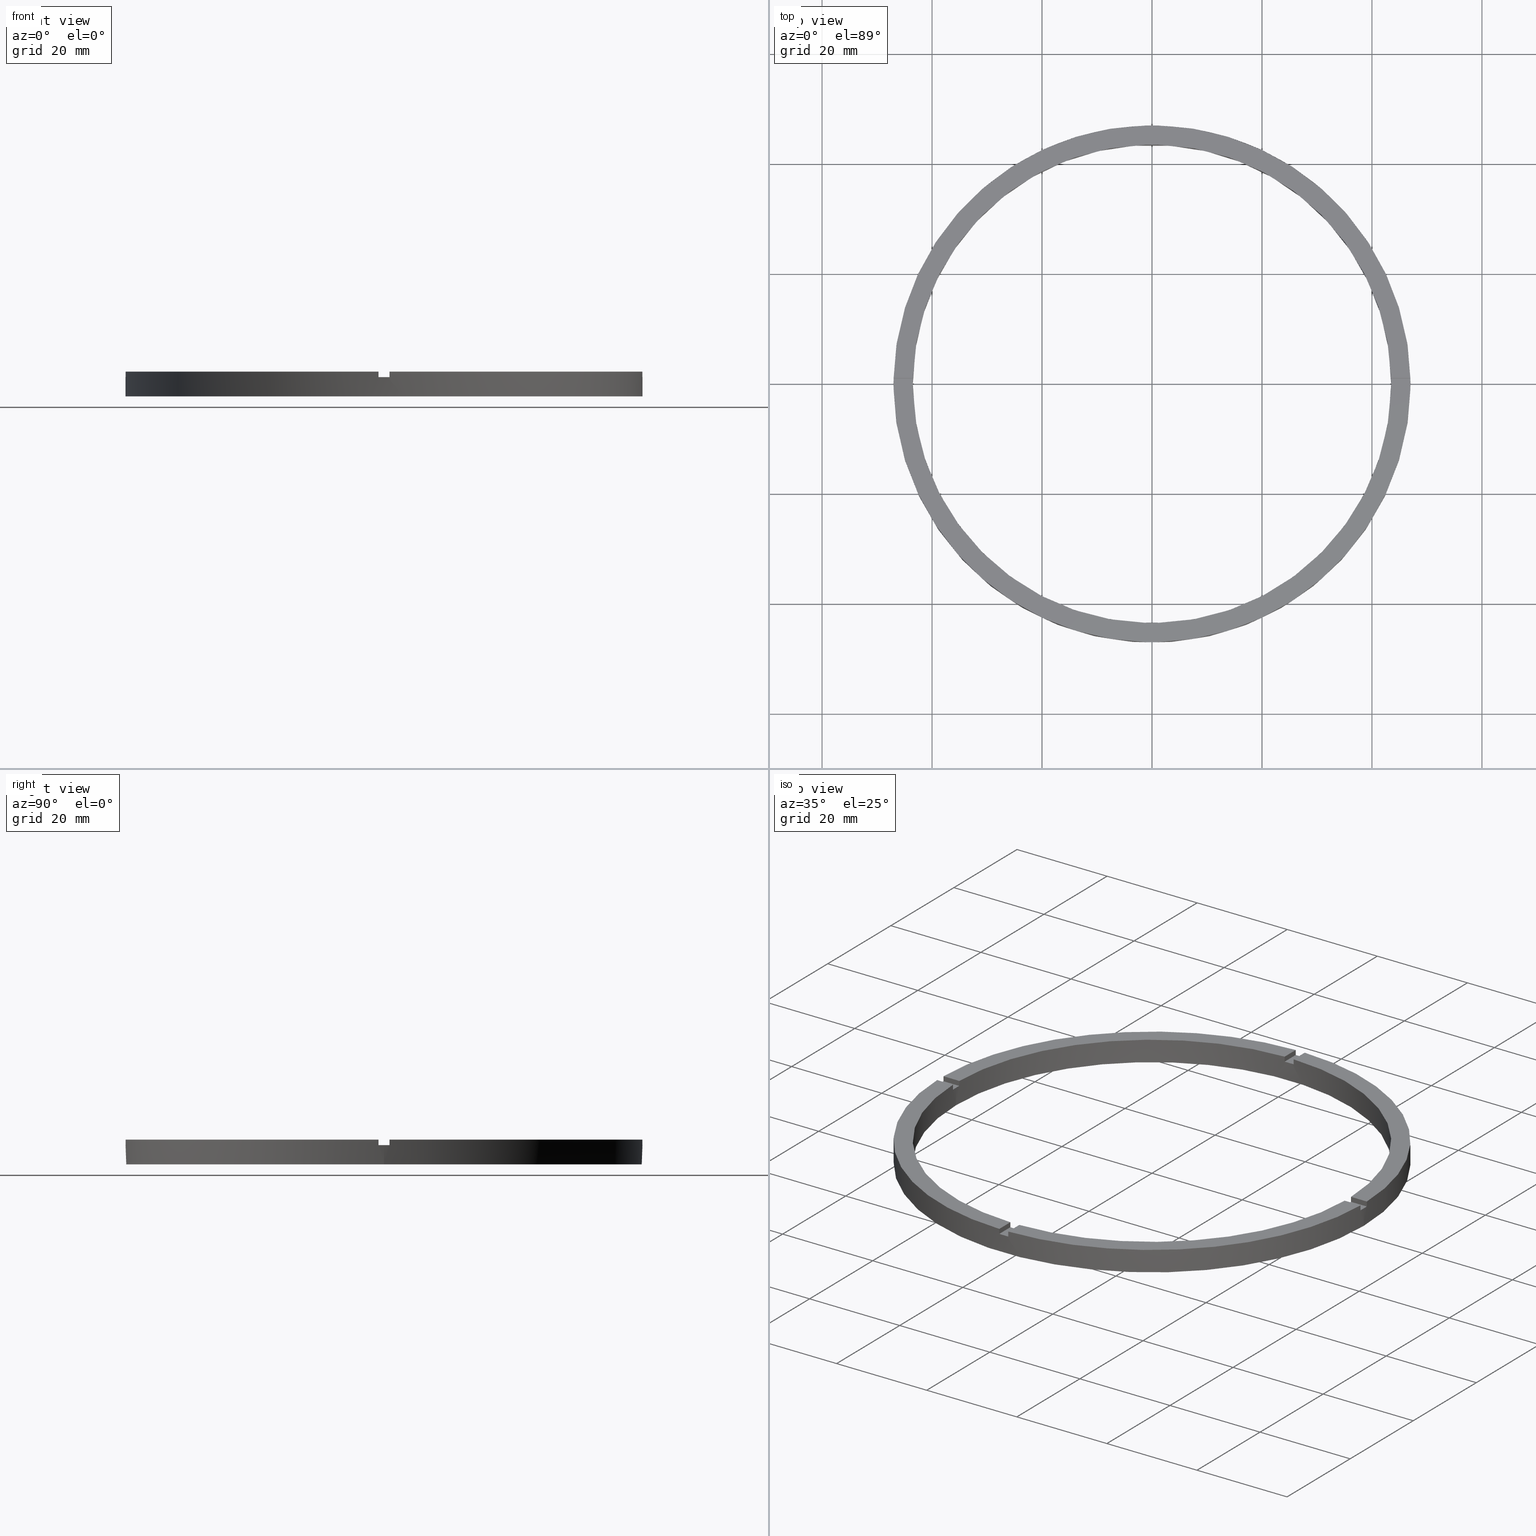
[diagram: canonical four-view strip — front | top / right | iso, engineering-drawing reading convention]
A machine part, canonical four-view strip (front | top / right | iso — engineering-drawing reading convention). The complete STEP part file that produces these views, byte-faithful:
ISO-10303-21;
HEADER;
FILE_DESCRIPTION (( 'STEP AP203' ),
    '1' );
FILE_NAME ('514193.step',
    '2024-12-26T02:46:39',
    ( 'MSI' ),
    ( '' ),
    'SwSTEP 2.0',
    'SolidWorks 2020',
    '' );
FILE_SCHEMA (( 'CONFIG_CONTROL_DESIGN' ));
ENDSEC;

DATA;
#1 = VERTEX_POINT ( 'NONE', #778 ) ;
#2 = EDGE_CURVE ( 'NONE', #428, #25, #442, .T. ) ;
#3 = DIRECTION ( 'NONE',  ( 0.000000000000000000, 0.000000000000000000, 1.000000000000000000 ) ) ;
#4 = LINE ( 'NONE', #335, #760 ) ;
#5 = ORIENTED_EDGE ( 'NONE', *, *, #675, .T. ) ;
#6 = VECTOR ( 'NONE', #573, 1000.000000000000000 ) ;
#7 = FACE_OUTER_BOUND ( 'NONE', #170, .T. ) ;
#8 = PRODUCT_DEFINITION ( 'δ֪', '', #55, #718 ) ;
#9 = CARTESIAN_POINT ( 'NONE',  ( -1.000000000000026423, 37.00000000000000711, 3.499999999999999556 ) ) ;
#10 = EDGE_LOOP ( 'NONE', ( #211, #484, #194, #402, #761, #656, #735, #734, #152, #149, #739, #217 ) ) ;
#11 = DIRECTION ( 'NONE',  ( -0.000000000000000000, 0.000000000000000000, 1.000000000000000000 ) ) ;
#12 = ADVANCED_BREP_SHAPE_REPRESENTATION ( '514193', ( #301, #42 ), #80 ) ;
#13 = VERTEX_POINT ( 'NONE', #171 ) ;
#14 = VERTEX_POINT ( 'NONE', #276 ) ;
#15 = CARTESIAN_POINT ( 'NONE',  ( 0.000000000000000000, 0.000000000000000000, 3.499999999999999556 ) ) ;
#16 = DIRECTION ( 'NONE',  ( -1.000000000000000000, -6.505213034913025371E-17, -0.000000000000000000 ) ) ;
#17 = COORDINATED_UNIVERSAL_TIME_OFFSET ( 8, 0, .AHEAD. ) ;
#18 = EDGE_LOOP ( 'NONE', ( #715, #722, #422, #283 ) ) ;
#19 = PRODUCT_RELATED_PRODUCT_CATEGORY ( 'detail', '', ( #72 ) ) ;
#20 = COORDINATED_UNIVERSAL_TIME_OFFSET ( 8, 0, .AHEAD. ) ;
#21 = SHAPE_DEFINITION_REPRESENTATION ( #781, #12 ) ;
#22 = ORIENTED_EDGE ( 'NONE', *, *, #586, .T. ) ;
#23 = AXIS2_PLACEMENT_3D ( 'NONE', #111, #26, #126 ) ;
#24 = CARTESIAN_POINT ( 'NONE',  ( 0.9999999999998412381, -37.00000000000018474, 4.500000000000000000 ) ) ;
#25 = VERTEX_POINT ( 'NONE', #613 ) ;
#26 = DIRECTION ( 'NONE',  ( 0.000000000000000000, 0.000000000000000000, 1.000000000000000000 ) ) ;
#27 = VERTEX_POINT ( 'NONE', #197 ) ;
#28 = ORIENTED_EDGE ( 'NONE', *, *, #773, .T. ) ;
#29 = DATE_AND_TIME ( #553, #48 ) ;
#30 = ORIENTED_EDGE ( 'NONE', *, *, #322, .T. ) ;
#31 = EDGE_CURVE ( 'NONE', #158, #542, #461, .T. ) ;
#32 = ORIENTED_EDGE ( 'NONE', *, *, #648, .F. ) ;
#33 =( LENGTH_UNIT ( ) NAMED_UNIT ( * ) SI_UNIT ( .MILLI., .METRE. ) );
#34 = PLANE ( 'NONE',  #426 ) ;
#35 = SECURITY_CLASSIFICATION_LEVEL ( 'unclassified' ) ;
#36 = APPROVAL_DATE_TIME ( #29, #218 ) ;
#37 = ADVANCED_FACE ( 'NONE', ( #725 ), #125, .F. ) ;
#38 = APPROVAL_PERSON_ORGANIZATION ( #559, #660, #274 ) ;
#39 = CARTESIAN_POINT ( 'NONE',  ( 43.48850422812906658, 0.9999999999998441247, 4.500000000000000000 ) ) ;
#40 = DATE_AND_TIME ( #52, #550 ) ;
#41 = EDGE_CURVE ( 'NONE', #13, #161, #454, .T. ) ;
#42 = AXIS2_PLACEMENT_3D ( 'NONE', #323, #561, #567 ) ;
#43 = APPLICATION_PROTOCOL_DEFINITION ( 'international standard', 'config_control_design', 1994, #83 ) ;
#44 = DIRECTION ( 'NONE',  ( 1.000000000000000000, 0.000000000000000000, 0.000000000000000000 ) ) ;
#45 = CARTESIAN_POINT ( 'NONE',  ( -47.00000000000000711, 0.000000000000000000, 0.000000000000000000 ) ) ;
#46 = CARTESIAN_POINT ( 'NONE',  ( 46.98936049788292024, -1.000000000000155653, 4.500000000000000000 ) ) ;
#47 = CARTESIAN_POINT ( 'NONE',  ( 0.000000000000000000, 0.000000000000000000, 4.500000000000000000 ) ) ;
#48 = LOCAL_TIME ( 10, 46, 39.00000000000000000, #17 ) ;
#49 = EDGE_CURVE ( 'NONE', #707, #710, #698, .T. ) ;
#50 = PERSON_AND_ORGANIZATION ( #622, #554 ) ;
#51 = CARTESIAN_POINT ( 'NONE',  ( 0.9999999999999735767, 43.48850422812906658, 4.500000000000000000 ) ) ;
#52 = CALENDAR_DATE ( 2024, 26, 12 ) ;
#53 = DIRECTION ( 'NONE',  ( -1.000000000000000000, 0.000000000000000000, 0.000000000000000000 ) ) ;
#54 = DIRECTION ( 'NONE',  ( -0.000000000000000000, -0.000000000000000000, -1.000000000000000000 ) ) ;
#55 = PRODUCT_DEFINITION_FORMATION_WITH_SPECIFIED_SOURCE ( '�κ�', '', #72, .NOT_KNOWN. ) ;
#56 = CARTESIAN_POINT ( 'NONE',  ( 0.000000000000000000, 0.000000000000000000, 4.500000000000000000 ) ) ;
#57 = DIRECTION ( 'NONE',  ( 1.000000000000000000, 0.000000000000000000, 0.000000000000000000 ) ) ;
#58 = AXIS2_PLACEMENT_3D ( 'NONE', #84, #684, #750 ) ;
#59 = CARTESIAN_POINT ( 'NONE',  ( 0.000000000000000000, 0.000000000000000000, 0.000000000000000000 ) ) ;
#60 = DIRECTION ( 'NONE',  ( 0.000000000000000000, 0.000000000000000000, 1.000000000000000000 ) ) ;
#61 = DIRECTION ( 'NONE',  ( -0.000000000000000000, -0.000000000000000000, -1.000000000000000000 ) ) ;
#62 = CARTESIAN_POINT ( 'NONE',  ( -46.98936049788292024, -1.000000000000030642, 3.499999999999999556 ) ) ;
#63 = AXIS2_PLACEMENT_3D ( 'NONE', #206, #751, #538 ) ;
#64 = DATE_AND_TIME ( #320, #572 ) ;
#65 = ADVANCED_FACE ( 'NONE', ( #723 ), #131, .F. ) ;
#66 = COORDINATED_UNIVERSAL_TIME_OFFSET ( 8, 0, .AHEAD. ) ;
#67 = AXIS2_PLACEMENT_3D ( 'NONE', #600, #245, #657 ) ;
#68 = CARTESIAN_POINT ( 'NONE',  ( 43.48850422812905947, -1.000000000000155875, 4.500000000000000000 ) ) ;
#69 = PERSON_AND_ORGANIZATION ( #622, #554 ) ;
#70 = PERSON_AND_ORGANIZATION ( #622, #554 ) ;
#71 = EDGE_CURVE ( 'NONE', #420, #518, #183, .T. ) ;
#72 = PRODUCT ( '514193', '514193', '', ( #326 ) ) ;
#73 = ADVANCED_FACE ( 'NONE', ( #448 ), #79, .T. ) ;
#74 = CARTESIAN_POINT ( 'NONE',  ( 0.9999999999998425704, -46.98936049788292735, 4.500000000000000000 ) ) ;
#75 = CARTESIAN_POINT ( 'NONE',  ( 0.9999999999999735767, 37.00000000000000711, 3.499999999999999556 ) ) ;
#76 = EDGE_CURVE ( 'NONE', #439, #162, #713, .T. ) ;
#77 = CARTESIAN_POINT ( 'NONE',  ( 0.000000000000000000, 0.000000000000000000, 0.000000000000000000 ) ) ;
#78 = EDGE_CURVE ( 'NONE', #537, #463, #204, .T. ) ;
#79 = PLANE ( 'NONE',  #643 ) ;
#80 =( GEOMETRIC_REPRESENTATION_CONTEXT ( 3 ) GLOBAL_UNCERTAINTY_ASSIGNED_CONTEXT ( ( #405 ) ) GLOBAL_UNIT_ASSIGNED_CONTEXT ( ( #33, #669, #740 ) ) REPRESENTATION_CONTEXT ( 'NONE', 'WORKASPACE' ) );
#81 = CC_DESIGN_DATE_AND_TIME_ASSIGNMENT ( #540, #196, ( #704 ) ) ;
#82 = AXIS2_PLACEMENT_3D ( 'NONE', #483, #132, #118 ) ;
#83 = APPLICATION_CONTEXT ( 'configuration controlled 3d designs of mechanical parts and assemblies' ) ;
#84 = CARTESIAN_POINT ( 'NONE',  ( 0.9999999999998412381, -37.00000000000018474, 3.499999999999999556 ) ) ;
#85 = DIRECTION ( 'NONE',  ( 1.000000000000000000, 0.000000000000000000, -0.000000000000000000 ) ) ;
#86 = EDGE_CURVE ( 'NONE', #463, #25, #703, .T. ) ;
#87 = APPLICATION_CONTEXT ( 'configuration controlled 3d designs of mechanical parts and assemblies' ) ;
#88 = EDGE_CURVE ( 'NONE', #428, #260, #205, .T. ) ;
#89 = CARTESIAN_POINT ( 'NONE',  ( -47.00000000000000711, 0.000000000000000000, 3.499999999999999556 ) ) ;
#90 = CARTESIAN_POINT ( 'NONE',  ( 0.000000000000000000, 0.000000000000000000, 3.499999999999999556 ) ) ;
#91 = LINE ( 'NONE', #666, #363 ) ;
#92 = EDGE_CURVE ( 'NONE', #25, #180, #728, .T. ) ;
#93 = LINE ( 'NONE', #324, #602 ) ;
#94 = VECTOR ( 'NONE', #640, 1000.000000000000000 ) ;
#95 = CARTESIAN_POINT ( 'NONE',  ( -1.000000000000158762, -37.00000000000018474, 4.500000000000000000 ) ) ;
#96 = EDGE_CURVE ( 'NONE', #668, #724, #186, .T. ) ;
#97 = DIRECTION ( 'NONE',  ( 1.000000000000000000, 0.000000000000000000, 0.000000000000000000 ) ) ;
#98 = EDGE_CURVE ( 'NONE', #198, #162, #451, .T. ) ;
#99 = AXIS2_PLACEMENT_3D ( 'NONE', #628, #471, #576 ) ;
#100 = DIRECTION ( 'NONE',  ( -1.000000000000000000, 0.000000000000000000, 0.000000000000000000 ) ) ;
#101 = CARTESIAN_POINT ( 'NONE',  ( -43.48850422812906658, -1.000000000000029976, 3.499999999999999556 ) ) ;
#102 = DIRECTION ( 'NONE',  ( -0.000000000000000000, -0.000000000000000000, -1.000000000000000000 ) ) ;
#103 = CIRCLE ( 'NONE', #113, 47.00000000000000711 ) ;
#104 = DIRECTION ( 'NONE',  ( 0.000000000000000000, 0.000000000000000000, 1.000000000000000000 ) ) ;
#105 = CIRCLE ( 'NONE', #349, 47.00000000000000711 ) ;
#106 = AXIS2_PLACEMENT_3D ( 'NONE', #228, #279, #395 ) ;
#107 = PLANE ( 'NONE',  #667 ) ;
#108 = AXIS2_PLACEMENT_3D ( 'NONE', #531, #391, #57 ) ;
#109 = FACE_OUTER_BOUND ( 'NONE', #192, .T. ) ;
#110 = DIRECTION ( 'NONE',  ( 1.000000000000000000, -0.000000000000000000, 0.000000000000000000 ) ) ;
#111 = CARTESIAN_POINT ( 'NONE',  ( 0.000000000000000000, 0.000000000000000000, 3.499999999999999556 ) ) ;
#112 = LINE ( 'NONE', #239, #632 ) ;
#113 = AXIS2_PLACEMENT_3D ( 'NONE', #133, #195, #425 ) ;
#114 = LINE ( 'NONE', #768, #517 ) ;
#115 = FACE_OUTER_BOUND ( 'NONE', #10, .T. ) ;
#116 = VECTOR ( 'NONE', #330, 1000.000000000000000 ) ;
#117 = EDGE_CURVE ( 'NONE', #518, #710, #189, .T. ) ;
#118 = DIRECTION ( 'NONE',  ( 1.000000000000000000, 0.000000000000000000, -0.000000000000000000 ) ) ;
#119 = CYLINDRICAL_SURFACE ( 'NONE', #663, 47.00000000000000711 ) ;
#120 = FACE_OUTER_BOUND ( 'NONE', #202, .T. ) ;
#121 = ORIENTED_EDGE ( 'NONE', *, *, #683, .T. ) ;
#122 = VECTOR ( 'NONE', #582, 1000.000000000000000 ) ;
#123 = EDGE_CURVE ( 'NONE', #424, #421, #705, .T. ) ;
#124 = LINE ( 'NONE', #706, #127 ) ;
#125 = PLANE ( 'NONE',  #67 ) ;
#126 = DIRECTION ( 'NONE',  ( 1.000000000000000000, 0.000000000000000000, 0.000000000000000000 ) ) ;
#127 = VECTOR ( 'NONE', #3, 1000.000000000000000 ) ;
#128 = FACE_OUTER_BOUND ( 'NONE', #473, .T. ) ;
#129 = VECTOR ( 'NONE', #429, 1000.000000000000000 ) ;
#130 = EDGE_CURVE ( 'NONE', #266, #289, #637, .T. ) ;
#131 = PLANE ( 'NONE',  #305 ) ;
#132 = DIRECTION ( 'NONE',  ( 0.000000000000000000, 0.000000000000000000, 1.000000000000000000 ) ) ;
#133 = CARTESIAN_POINT ( 'NONE',  ( 0.000000000000000000, 0.000000000000000000, 3.499999999999999556 ) ) ;
#134 = CC_DESIGN_APPROVAL ( #660, ( #8 ) ) ;
#135 = AXIS2_PLACEMENT_3D ( 'NONE', #523, #144, #575 ) ;
#136 = ADVANCED_FACE ( 'NONE', ( #645 ), #291, .T. ) ;
#137 = APPLICATION_PROTOCOL_DEFINITION ( 'international standard', 'config_control_design', 1994, #87 ) ;
#138 = CARTESIAN_POINT ( 'NONE',  ( -1.000000000000158762, -37.00000000000018474, 3.499999999999999556 ) ) ;
#139 = CARTESIAN_POINT ( 'NONE',  ( 43.48850422812905947, -1.000000000000155875, 3.499999999999999556 ) ) ;
#140 = DIRECTION ( 'NONE',  ( -0.000000000000000000, -0.000000000000000000, -1.000000000000000000 ) ) ;
#141 = CARTESIAN_POINT ( 'NONE',  ( 47.00000000000000711, 5.755839955992561430E-15, 0.000000000000000000 ) ) ;
#142 = EDGE_CURVE ( 'NONE', #416, #526, #374, .T. ) ;
#143 = DIRECTION ( 'NONE',  ( 1.000000000000000000, 6.505213034913025371E-17, 0.000000000000000000 ) ) ;
#144 = DIRECTION ( 'NONE',  ( 0.000000000000000000, 0.000000000000000000, 1.000000000000000000 ) ) ;
#145 = DIRECTION ( 'NONE',  ( 0.000000000000000000, 0.000000000000000000, 1.000000000000000000 ) ) ;
#146 = ORIENTED_EDGE ( 'NONE', *, *, #481, .T. ) ;
#147 = ORIENTED_EDGE ( 'NONE', *, *, #673, .F. ) ;
#148 = DIRECTION ( 'NONE',  ( 1.000000000000000000, 0.000000000000000000, 0.000000000000000000 ) ) ;
#149 = ORIENTED_EDGE ( 'NONE', *, *, #234, .F. ) ;
#150 = ADVANCED_FACE ( 'NONE', ( #115 ), #119, .T. ) ;
#151 = EDGE_CURVE ( 'NONE', #668, #682, #389, .T. ) ;
#152 = ORIENTED_EDGE ( 'NONE', *, *, #440, .T. ) ;
#153 = PLANE ( 'NONE',  #501 ) ;
#154 = ORIENTED_EDGE ( 'NONE', *, *, #653, .F. ) ;
#155 = CARTESIAN_POINT ( 'NONE',  ( 0.9999999999999735767, 46.98936049788292024, 3.499999999999999556 ) ) ;
#156 = EDGE_LOOP ( 'NONE', ( #665, #226, #215, #661, #475, #249, #474, #504, #238, #408, #480, #492 ) ) ;
#157 = AXIS2_PLACEMENT_3D ( 'NONE', #138, #216, #529 ) ;
#158 = VERTEX_POINT ( 'NONE', #641 ) ;
#159 = DIRECTION ( 'NONE',  ( 0.000000000000000000, 0.000000000000000000, 1.000000000000000000 ) ) ;
#160 = DIRECTION ( 'NONE',  ( -0.000000000000000000, -0.000000000000000000, -1.000000000000000000 ) ) ;
#161 = VERTEX_POINT ( 'NONE', #155 ) ;
#162 = VERTEX_POINT ( 'NONE', #619 ) ;
#163 = ADVANCED_FACE ( 'NONE', ( #376 ), #672, .F. ) ;
#164 = CARTESIAN_POINT ( 'NONE',  ( 0.9999999999998425704, -46.98936049788292735, 3.499999999999999556 ) ) ;
#165 = DIRECTION ( 'NONE',  ( -0.000000000000000000, -0.000000000000000000, -1.000000000000000000 ) ) ;
#166 = ORIENTED_EDGE ( 'NONE', *, *, #337, .T. ) ;
#167 = CC_DESIGN_PERSON_AND_ORGANIZATION_ASSIGNMENT ( #560, #327, ( #8 ) ) ;
#168 = AXIS2_PLACEMENT_3D ( 'NONE', #298, #748, #587 ) ;
#169 = AXIS2_PLACEMENT_3D ( 'NONE', #209, #393, #44 ) ;
#170 = EDGE_LOOP ( 'NONE', ( #491, #414, #275, #278 ) ) ;
#171 = CARTESIAN_POINT ( 'NONE',  ( 0.9999999999999735767, 43.48850422812906658, 3.499999999999999556 ) ) ;
#172 = ORIENTED_EDGE ( 'NONE', *, *, #41, .T. ) ;
#173 = DIRECTION ( 'NONE',  ( 0.000000000000000000, 0.000000000000000000, 1.000000000000000000 ) ) ;
#174 = VERTEX_POINT ( 'NONE', #51 ) ;
#175 = ORIENTED_EDGE ( 'NONE', *, *, #96, .T. ) ;
#176 = CARTESIAN_POINT ( 'NONE',  ( 0.000000000000000000, 0.000000000000000000, 4.500000000000000000 ) ) ;
#177 = VECTOR ( 'NONE', #652, 1000.000000000000000 ) ;
#178 = ORIENTED_EDGE ( 'NONE', *, *, #371, .F. ) ;
#179 = ORIENTED_EDGE ( 'NONE', *, *, #151, .F. ) ;
#180 = VERTEX_POINT ( 'NONE', #46 ) ;
#181 = ORIENTED_EDGE ( 'NONE', *, *, #241, .F. ) ;
#182 = EDGE_LOOP ( 'NONE', ( #431, #207, #658, #695, #496, #436 ) ) ;
#183 = CIRCLE ( 'NONE', #184, 43.50000000000000000 ) ;
#184 = AXIS2_PLACEMENT_3D ( 'NONE', #15, #410, #486 ) ;
#185 = CARTESIAN_POINT ( 'NONE',  ( 46.98936049788292024, -1.000000000000155653, 3.499999999999999556 ) ) ;
#186 = CIRCLE ( 'NONE', #108, 43.50000000000000000 ) ;
#187 = ORIENTED_EDGE ( 'NONE', *, *, #617, .F. ) ;
#188 = EDGE_LOOP ( 'NONE', ( #701, #499 ) ) ;
#189 = CIRCLE ( 'NONE', #392, 43.50000000000000000 ) ;
#190 = CARTESIAN_POINT ( 'NONE',  ( 0.000000000000000000, 0.000000000000000000, 3.499999999999999556 ) ) ;
#191 = ORIENTED_EDGE ( 'NONE', *, *, #727, .F. ) ;
#192 = EDGE_LOOP ( 'NONE', ( #247, #435, #22, #534, #187, #696, #769, #489, #417, #418, #694, #432 ) ) ;
#193 = EDGE_LOOP ( 'NONE', ( #494, #287, #230, #541 ) ) ;
#194 = ORIENTED_EDGE ( 'NONE', *, *, #364, .T. ) ;
#195 = DIRECTION ( 'NONE',  ( 0.000000000000000000, -0.000000000000000000, 1.000000000000000000 ) ) ;
#196 = DATE_TIME_ROLE ( 'classification_date' ) ;
#197 = CARTESIAN_POINT ( 'NONE',  ( 0.9999999999999735767, 46.98936049788292024, 4.500000000000000000 ) ) ;
#198 = VERTEX_POINT ( 'NONE', #766 ) ;
#199 = PLANE ( 'NONE',  #219 ) ;
#200 = VERTEX_POINT ( 'NONE', #303 ) ;
#201 = VECTOR ( 'NONE', #477, 1000.000000000000000 ) ;
#202 = EDGE_LOOP ( 'NONE', ( #685, #427, #423, #32 ) ) ;
#203 = ORIENTED_EDGE ( 'NONE', *, *, #433, .F. ) ;
#204 = LINE ( 'NONE', #24, #699 ) ;
#205 = LINE ( 'NONE', #493, #726 ) ;
#206 = CARTESIAN_POINT ( 'NONE',  ( 0.000000000000000000, 0.000000000000000000, 3.499999999999999556 ) ) ;
#207 = ORIENTED_EDGE ( 'NONE', *, *, #234, .T. ) ;
#208 = ORIENTED_EDGE ( 'NONE', *, *, #440, .F. ) ;
#209 = CARTESIAN_POINT ( 'NONE',  ( 0.000000000000000000, 0.000000000000000000, 3.499999999999999556 ) ) ;
#210 = VERTEX_POINT ( 'NONE', #659 ) ;
#211 = ORIENTED_EDGE ( 'NONE', *, *, #31, .F. ) ;
#212 = DIRECTION ( 'NONE',  ( 0.000000000000000000, 0.000000000000000000, 1.000000000000000000 ) ) ;
#213 = ADVANCED_FACE ( 'NONE', ( #120 ), #107, .F. ) ;
#214 = EDGE_LOOP ( 'NONE', ( #181, #742, #662, #755 ) ) ;
#215 = ORIENTED_EDGE ( 'NONE', *, *, #98, .F. ) ;
#216 = DIRECTION ( 'NONE',  ( -1.000000000000000000, -1.301042606982605074E-16, 0.000000000000000000 ) ) ;
#217 = ORIENTED_EDGE ( 'NONE', *, *, #452, .T. ) ;
#218 = APPROVAL ( #512, 'δָ��' ) ;
#219 = AXIS2_PLACEMENT_3D ( 'NONE', #569, #271, #387 ) ;
#220 = CARTESIAN_POINT ( 'NONE',  ( -43.48850422812906658, -1.000000000000029976, 4.500000000000000000 ) ) ;
#221 = AXIS2_PLACEMENT_3D ( 'NONE', #258, #319, #359 ) ;
#222 = EDGE_LOOP ( 'NONE', ( #686, #721, #154, #720, #511, #430, #443, #179, #175, #178, #777, #444 ) ) ;
#223 = ORIENTED_EDGE ( 'NONE', *, *, #562, .F. ) ;
#224 = CARTESIAN_POINT ( 'NONE',  ( 37.00000000000000000, -1.000000000000156319, 4.500000000000000000 ) ) ;
#225 = DIRECTION ( 'NONE',  ( -0.000000000000000000, -0.000000000000000000, -1.000000000000000000 ) ) ;
#226 = ORIENTED_EDGE ( 'NONE', *, *, #76, .T. ) ;
#227 = ORIENTED_EDGE ( 'NONE', *, *, #409, .F. ) ;
#228 = CARTESIAN_POINT ( 'NONE',  ( 0.000000000000000000, 0.000000000000000000, 4.500000000000000000 ) ) ;
#229 = DIRECTION ( 'NONE',  ( 1.000000000000000000, 1.951563910473907735E-16, -0.000000000000000000 ) ) ;
#230 = ORIENTED_EDGE ( 'NONE', *, *, #92, .T. ) ;
#231 = EDGE_CURVE ( 'NONE', #460, #162, #380, .T. ) ;
#232 = CARTESIAN_POINT ( 'NONE',  ( 37.00000000000000000, -1.000000000000156319, 3.499999999999999556 ) ) ;
#233 = CIRCLE ( 'NONE', #690, 47.00000000000000711 ) ;
#234 = EDGE_CURVE ( 'NONE', #424, #763, #385, .T. ) ;
#235 = CARTESIAN_POINT ( 'NONE',  ( -1.000000000000026423, 43.48850422812906658, 3.499999999999999556 ) ) ;
#236 = LINE ( 'NONE', #342, #237 ) ;
#237 = VECTOR ( 'NONE', #780, 1000.000000000000000 ) ;
#238 = ORIENTED_EDGE ( 'NONE', *, *, #524, .F. ) ;
#239 = CARTESIAN_POINT ( 'NONE',  ( 43.50000000000000000, 5.327213576290986044E-15, 4.500000000000000000 ) ) ;
#240 = LINE ( 'NONE', #633, #782 ) ;
#241 = EDGE_CURVE ( 'NONE', #420, #719, #639, .T. ) ;
#242 = VERTEX_POINT ( 'NONE', #164 ) ;
#243 = LINE ( 'NONE', #676, #269 ) ;
#244 = ORIENTED_EDGE ( 'NONE', *, *, #371, .T. ) ;
#245 = DIRECTION ( 'NONE',  ( -1.000000000000000000, 0.000000000000000000, 0.000000000000000000 ) ) ;
#246 = LINE ( 'NONE', #693, #509 ) ;
#247 = ORIENTED_EDGE ( 'NONE', *, *, #312, .F. ) ;
#248 = LINE ( 'NONE', #95, #259 ) ;
#249 = ORIENTED_EDGE ( 'NONE', *, *, #673, .T. ) ;
#250 = PLANE ( 'NONE',  #472 ) ;
#251 = LINE ( 'NONE', #399, #514 ) ;
#252 = AXIS2_PLACEMENT_3D ( 'NONE', #56, #747, #97 ) ;
#253 = EDGE_LOOP ( 'NONE', ( #772, #689, #765, #691 ) ) ;
#254 = DIRECTION ( 'NONE',  ( 0.000000000000000000, 0.000000000000000000, 1.000000000000000000 ) ) ;
#255 = ORIENTED_EDGE ( 'NONE', *, *, #507, .T. ) ;
#256 = VECTOR ( 'NONE', #478, 1000.000000000000000 ) ;
#257 = VERTEX_POINT ( 'NONE', #401 ) ;
#258 = CARTESIAN_POINT ( 'NONE',  ( 0.000000000000000000, 0.000000000000000000, 4.500000000000000000 ) ) ;
#259 = VECTOR ( 'NONE', #708, 1000.000000000000000 ) ;
#260 = VERTEX_POINT ( 'NONE', #185 ) ;
#261 = DIRECTION ( 'NONE',  ( -6.505213034913025371E-17, 1.000000000000000000, 0.000000000000000000 ) ) ;
#262 = VECTOR ( 'NONE', #774, 1000.000000000000000 ) ;
#263 = EDGE_LOOP ( 'NONE', ( #506, #28, #654, #281 ) ) ;
#264 = CC_DESIGN_PERSON_AND_ORGANIZATION_ASSIGNMENT ( #70, #611, ( #55 ) ) ;
#265 = FACE_OUTER_BOUND ( 'NONE', #253, .T. ) ;
#266 = VERTEX_POINT ( 'NONE', #606 ) ;
#267 = VECTOR ( 'NONE', #339, 1000.000000000000000 ) ;
#268 = ORIENTED_EDGE ( 'NONE', *, *, #400, .T. ) ;
#269 = VECTOR ( 'NONE', #462, 1000.000000000000000 ) ;
#270 = ORIENTED_EDGE ( 'NONE', *, *, #312, .T. ) ;
#271 = DIRECTION ( 'NONE',  ( 0.000000000000000000, 0.000000000000000000, 1.000000000000000000 ) ) ;
#272 = CIRCLE ( 'NONE', #620, 47.00000000000000711 ) ;
#273 = FACE_OUTER_BOUND ( 'NONE', #521, .T. ) ;
#274 = APPROVAL_ROLE ( '' ) ;
#275 = ORIENTED_EDGE ( 'NONE', *, *, #78, .F. ) ;
#276 = CARTESIAN_POINT ( 'NONE',  ( -1.000000000000157430, -46.98936049788292024, 3.499999999999999556 ) ) ;
#277 = AXIS2_PLACEMENT_3D ( 'NONE', #297, #680, #593 ) ;
#278 = ORIENTED_EDGE ( 'NONE', *, *, #353, .T. ) ;
#279 = DIRECTION ( 'NONE',  ( 0.000000000000000000, 0.000000000000000000, 1.000000000000000000 ) ) ;
#280 = PERSON_AND_ORGANIZATION ( #622, #554 ) ;
#281 = ORIENTED_EDGE ( 'NONE', *, *, #624, .T. ) ;
#282 = DIRECTION ( 'NONE',  ( 0.000000000000000000, 0.000000000000000000, 1.000000000000000000 ) ) ;
#283 = ORIENTED_EDGE ( 'NONE', *, *, #731, .F. ) ;
#284 = VERTEX_POINT ( 'NONE', #592 ) ;
#285 = DIRECTION ( 'NONE',  ( 0.000000000000000000, 0.000000000000000000, 1.000000000000000000 ) ) ;
#286 = CARTESIAN_POINT ( 'NONE',  ( 0.000000000000000000, 0.000000000000000000, 4.500000000000000000 ) ) ;
#287 = ORIENTED_EDGE ( 'NONE', *, *, #2, .T. ) ;
#288 = CARTESIAN_POINT ( 'NONE',  ( -37.00000000000019185, -1.000000000000028644, 4.500000000000000000 ) ) ;
#289 = VERTEX_POINT ( 'NONE', #736 ) ;
#290 = CARTESIAN_POINT ( 'NONE',  ( 0.000000000000000000, 0.000000000000000000, 0.000000000000000000 ) ) ;
#291 = PLANE ( 'NONE',  #547 ) ;
#292 = CARTESIAN_POINT ( 'NONE',  ( -1.000000000000158762, -37.00000000000018474, 3.499999999999999556 ) ) ;
#293 = DIRECTION ( 'NONE',  ( 1.951563910473907735E-16, -1.000000000000000000, 0.000000000000000000 ) ) ;
#294 = DIRECTION ( 'NONE',  ( 0.000000000000000000, 0.000000000000000000, 1.000000000000000000 ) ) ;
#295 = APPROVAL_PERSON_ORGANIZATION ( #280, #218, #759 ) ;
#296 = DIRECTION ( 'NONE',  ( 0.000000000000000000, 0.000000000000000000, 1.000000000000000000 ) ) ;
#297 = CARTESIAN_POINT ( 'NONE',  ( 0.000000000000000000, 0.000000000000000000, 4.500000000000000000 ) ) ;
#298 = CARTESIAN_POINT ( 'NONE',  ( 0.000000000000000000, 0.000000000000000000, 4.500000000000000000 ) ) ;
#299 = CARTESIAN_POINT ( 'NONE',  ( -1.000000000000026423, 46.98936049788292024, 3.499999999999999556 ) ) ;
#300 = CARTESIAN_POINT ( 'NONE',  ( -1.000000000000026423, 37.00000000000000711, 4.500000000000000000 ) ) ;
#301 = MANIFOLD_SOLID_BREP ( '�г�-����1', #438 ) ;
#302 = AXIS2_PLACEMENT_3D ( 'NONE', #59, #394, #398 ) ;
#303 = CARTESIAN_POINT ( 'NONE',  ( -46.98936049788292024, -1.000000000000030642, 4.500000000000000000 ) ) ;
#304 = CARTESIAN_POINT ( 'NONE',  ( 0.9999999999999735767, 37.00000000000000711, 4.500000000000000000 ) ) ;
#305 = AXIS2_PLACEMENT_3D ( 'NONE', #75, #110, #354 ) ;
#306 = APPROVAL_DATE_TIME ( #40, #660 ) ;
#307 = ADVANCED_FACE ( 'NONE', ( #128 ), #350, .T. ) ;
#308 = CARTESIAN_POINT ( 'NONE',  ( 46.98936049788292735, 0.9999999999998443467, 3.499999999999999556 ) ) ;
#309 = DIRECTION ( 'NONE',  ( 0.000000000000000000, 1.000000000000000000, 0.000000000000000000 ) ) ;
#310 = DIRECTION ( 'NONE',  ( -1.000000000000000000, -1.951563910473907735E-16, 0.000000000000000000 ) ) ;
#311 = DIRECTION ( 'NONE',  ( 1.000000000000000000, 0.000000000000000000, 0.000000000000000000 ) ) ;
#312 = EDGE_CURVE ( 'NONE', #158, #460, #381, .T. ) ;
#313 = CARTESIAN_POINT ( 'NONE',  ( 0.000000000000000000, 0.000000000000000000, 3.499999999999999556 ) ) ;
#314 = EDGE_CURVE ( 'NONE', #719, #289, #124, .T. ) ;
#315 = COORDINATED_UNIVERSAL_TIME_OFFSET ( 8, 0, .AHEAD. ) ;
#316 = DATE_AND_TIME ( #321, #318 ) ;
#317 = CC_DESIGN_PERSON_AND_ORGANIZATION_ASSIGNMENT ( #50, #746, ( #72 ) ) ;
#318 = LOCAL_TIME ( 10, 46, 39.00000000000000000, #315 ) ;
#319 = DIRECTION ( 'NONE',  ( 0.000000000000000000, 0.000000000000000000, 1.000000000000000000 ) ) ;
#320 = CALENDAR_DATE ( 2024, 26, 12 ) ;
#321 = CALENDAR_DATE ( 2024, 26, 12 ) ;
#322 = EDGE_CURVE ( 'NONE', #487, #526, #383, .T. ) ;
#323 = CARTESIAN_POINT ( 'NONE',  ( 0.000000000000000000, 0.000000000000000000, 0.000000000000000000 ) ) ;
#324 = CARTESIAN_POINT ( 'NONE',  ( 0.9999999999998421263, -43.48850422812906658, 4.500000000000000000 ) ) ;
#325 = AXIS2_PLACEMENT_3D ( 'NONE', #536, #104, #757 ) ;
#326 = MECHANICAL_CONTEXT ( 'NONE', #83, 'mechanical' ) ;
#327 = PERSON_AND_ORGANIZATION_ROLE ( 'creator' ) ;
#328 = CARTESIAN_POINT ( 'NONE',  ( 47.00000000000000711, 5.755839955992561430E-15, 4.500000000000000000 ) ) ;
#329 = ADVANCED_FACE ( 'NONE', ( #390 ), #199, .T. ) ;
#330 = DIRECTION ( 'NONE',  ( -1.000000000000000000, -1.951563910473907735E-16, 0.000000000000000000 ) ) ;
#331 = AXIS2_PLACEMENT_3D ( 'NONE', #447, #165, #594 ) ;
#332 = DIRECTION ( 'NONE',  ( 1.000000000000000000, 0.000000000000000000, 0.000000000000000000 ) ) ;
#333 = DIRECTION ( 'NONE',  ( 0.000000000000000000, 0.000000000000000000, 1.000000000000000000 ) ) ;
#334 = ADVANCED_FACE ( 'NONE', ( #647 ), #621, .T. ) ;
#335 = CARTESIAN_POINT ( 'NONE',  ( 0.9999999999998425704, -46.98936049788292735, 4.500000000000000000 ) ) ;
#336 = PLANE ( 'NONE',  #596 ) ;
#337 = EDGE_CURVE ( 'NONE', #210, #289, #105, .T. ) ;
#338 = DIRECTION ( 'NONE',  ( 0.000000000000000000, 0.000000000000000000, 1.000000000000000000 ) ) ;
#339 = DIRECTION ( 'NONE',  ( 1.301042606982605074E-16, -1.000000000000000000, 0.000000000000000000 ) ) ;
#340 = CARTESIAN_POINT ( 'NONE',  ( 46.98936049788292735, 0.9999999999998443467, 4.500000000000000000 ) ) ;
#341 = EDGE_CURVE ( 'NONE', #14, #242, #607, .T. ) ;
#342 = CARTESIAN_POINT ( 'NONE',  ( -43.48850422812906658, 0.9999999999999701350, 4.500000000000000000 ) ) ;
#343 = DIRECTION ( 'NONE',  ( -0.000000000000000000, -1.000000000000000000, -0.000000000000000000 ) ) ;
#344 = ADVANCED_FACE ( 'NONE', ( #598 ), #614, .F. ) ;
#345 = DIRECTION ( 'NONE',  ( 0.000000000000000000, 0.000000000000000000, 1.000000000000000000 ) ) ;
#346 = CIRCLE ( 'NONE', #419, 43.50000000000000000 ) ;
#347 = FACE_OUTER_BOUND ( 'NONE', #263, .T. ) ;
#348 = CC_DESIGN_APPROVAL ( #218, ( #704 ) ) ;
#349 = AXIS2_PLACEMENT_3D ( 'NONE', #47, #282, #441 ) ;
#350 = PLANE ( 'NONE',  #82 ) ;
#351 = ADVANCED_FACE ( 'NONE', ( #597 ), #153, .F. ) ;
#352 = DIRECTION ( 'NONE',  ( -0.000000000000000000, -0.000000000000000000, -1.000000000000000000 ) ) ;
#353 = EDGE_CURVE ( 'NONE', #537, #180, #599, .T. ) ;
#354 = DIRECTION ( 'NONE',  ( 0.000000000000000000, 0.000000000000000000, -1.000000000000000000 ) ) ;
#355 = AXIS2_PLACEMENT_3D ( 'NONE', #743, #379, #85 ) ;
#356 = DIRECTION ( 'NONE',  ( 0.000000000000000000, 0.000000000000000000, 1.000000000000000000 ) ) ;
#357 = VECTOR ( 'NONE', #229, 1000.000000000000000 ) ;
#358 = EDGE_CURVE ( 'NONE', #416, #266, #626, .T. ) ;
#359 = DIRECTION ( 'NONE',  ( 1.000000000000000000, 0.000000000000000000, 0.000000000000000000 ) ) ;
#360 = CARTESIAN_POINT ( 'NONE',  ( 37.00000000000000000, 0.9999999999998436806, 3.499999999999999556 ) ) ;
#361 = CARTESIAN_POINT ( 'NONE',  ( 0.000000000000000000, 0.000000000000000000, 3.499999999999999556 ) ) ;
#362 = LINE ( 'NONE', #568, #94 ) ;
#363 = VECTOR ( 'NONE', #510, 1000.000000000000000 ) ;
#364 = EDGE_CURVE ( 'NONE', #260, #180, #362, .T. ) ;
#365 = LINE ( 'NONE', #288, #357 ) ;
#366 = DATE_TIME_ROLE ( 'creation_date' ) ;
#367 = DIRECTION ( 'NONE',  ( -1.000000000000000000, -1.951563910473907735E-16, 0.000000000000000000 ) ) ;
#368 = CYLINDRICAL_SURFACE ( 'NONE', #580, 43.50000000000000000 ) ;
#369 = PERSON_AND_ORGANIZATION_ROLE ( 'classification_officer' ) ;
#370 = DIRECTION ( 'NONE',  ( -0.000000000000000000, -0.000000000000000000, -1.000000000000000000 ) ) ;
#371 = EDGE_CURVE ( 'NONE', #463, #724, #93, .T. ) ;
#372 = AXIS2_PLACEMENT_3D ( 'NONE', #290, #338, #148 ) ;
#373 = DIRECTION ( 'NONE',  ( -1.301042606982605074E-16, 1.000000000000000000, -0.000000000000000000 ) ) ;
#374 = LINE ( 'NONE', #578, #644 ) ;
#375 = DIRECTION ( 'NONE',  ( 1.000000000000000000, 6.505213034913025371E-17, 0.000000000000000000 ) ) ;
#376 = FACE_OUTER_BOUND ( 'NONE', #697, .T. ) ;
#377 = CARTESIAN_POINT ( 'NONE',  ( -47.00000000000000711, 0.000000000000000000, 4.500000000000000000 ) ) ;
#378 = VECTOR ( 'NONE', #16, 1000.000000000000000 ) ;
#379 = DIRECTION ( 'NONE',  ( 0.000000000000000000, -0.000000000000000000, 1.000000000000000000 ) ) ;
#380 = LINE ( 'NONE', #360, #378 ) ;
#381 = CIRCLE ( 'NONE', #549, 47.00000000000000711 ) ;
#382 = DIRECTION ( 'NONE',  ( 1.000000000000000000, 0.000000000000000000, 0.000000000000000000 ) ) ;
#383 = LINE ( 'NONE', #9, #129 ) ;
#384 = DIRECTION ( 'NONE',  ( -0.000000000000000000, -0.000000000000000000, -1.000000000000000000 ) ) ;
#385 = CIRCLE ( 'NONE', #23, 47.00000000000000711 ) ;
#386 = DIRECTION ( 'NONE',  ( 1.000000000000000000, 0.000000000000000000, 0.000000000000000000 ) ) ;
#387 = DIRECTION ( 'NONE',  ( 1.000000000000000000, 0.000000000000000000, -0.000000000000000000 ) ) ;
#388 = CC_DESIGN_PERSON_AND_ORGANIZATION_ASSIGNMENT ( #552, #369, ( #704 ) ) ;
#389 = LINE ( 'NONE', #588, #122 ) ;
#390 = FACE_OUTER_BOUND ( 'NONE', #458, .T. ) ;
#391 = DIRECTION ( 'NONE',  ( -0.000000000000000000, 0.000000000000000000, 1.000000000000000000 ) ) ;
#392 = AXIS2_PLACEMENT_3D ( 'NONE', #90, #296, #455 ) ;
#393 = DIRECTION ( 'NONE',  ( 0.000000000000000000, -0.000000000000000000, 1.000000000000000000 ) ) ;
#394 = DIRECTION ( 'NONE',  ( 0.000000000000000000, 0.000000000000000000, 1.000000000000000000 ) ) ;
#395 = DIRECTION ( 'NONE',  ( 1.000000000000000000, 0.000000000000000000, 0.000000000000000000 ) ) ;
#396 = ADVANCED_FACE ( 'NONE', ( #604 ), #34, .T. ) ;
#397 = DIRECTION ( 'NONE',  ( 1.000000000000000000, 0.000000000000000000, -0.000000000000000000 ) ) ;
#398 = DIRECTION ( 'NONE',  ( 1.000000000000000000, 0.000000000000000000, -0.000000000000000000 ) ) ;
#399 = CARTESIAN_POINT ( 'NONE',  ( 0.9999999999998412381, -37.00000000000018474, 3.499999999999999556 ) ) ;
#400 = EDGE_CURVE ( 'NONE', #161, #487, #103, .T. ) ;
#401 = CARTESIAN_POINT ( 'NONE',  ( -1.000000000000157430, -46.98936049788292024, 4.500000000000000000 ) ) ;
#402 = ORIENTED_EDGE ( 'NONE', *, *, #353, .F. ) ;
#403 = PLANE ( 'NONE',  #302 ) ;
#404 = ORIENTED_EDGE ( 'NONE', *, *, #687, .T. ) ;
#405 = UNCERTAINTY_MEASURE_WITH_UNIT (LENGTH_MEASURE( 1.000000000000000082E-05 ), #33, 'distance_accuracy_value', 'NONE');
#406 = ORIENTED_EDGE ( 'NONE', *, *, #41, .F. ) ;
#407 = DIRECTION ( 'NONE',  ( 1.000000000000000000, 0.000000000000000000, 0.000000000000000000 ) ) ;
#408 = ORIENTED_EDGE ( 'NONE', *, *, #71, .T. ) ;
#409 = EDGE_CURVE ( 'NONE', #450, #198, #91, .T. ) ;
#410 = DIRECTION ( 'NONE',  ( 0.000000000000000000, 0.000000000000000000, 1.000000000000000000 ) ) ;
#411 = ORIENTED_EDGE ( 'NONE', *, *, #773, .F. ) ;
#412 = CARTESIAN_POINT ( 'NONE',  ( 0.9999999999998421263, -43.48850422812906658, 4.500000000000000000 ) ) ;
#413 = ORIENTED_EDGE ( 'NONE', *, *, #615, .F. ) ;
#414 = ORIENTED_EDGE ( 'NONE', *, *, #86, .F. ) ;
#415 = DIRECTION ( 'NONE',  ( 1.000000000000000000, 0.000000000000000000, 0.000000000000000000 ) ) ;
#416 = VERTEX_POINT ( 'NONE', #741 ) ;
#417 = ORIENTED_EDGE ( 'NONE', *, *, #400, .F. ) ;
#418 = ORIENTED_EDGE ( 'NONE', *, *, #562, .T. ) ;
#419 = AXIS2_PLACEMENT_3D ( 'NONE', #286, #333, #382 ) ;
#420 = VERTEX_POINT ( 'NONE', #671 ) ;
#421 = VERTEX_POINT ( 'NONE', #45 ) ;
#422 = ORIENTED_EDGE ( 'NONE', *, *, #322, .F. ) ;
#423 = ORIENTED_EDGE ( 'NONE', *, *, #231, .F. ) ;
#424 = VERTEX_POINT ( 'NONE', #89 ) ;
#425 = DIRECTION ( 'NONE',  ( 1.000000000000000000, 0.000000000000000000, 0.000000000000000000 ) ) ;
#426 = AXIS2_PLACEMENT_3D ( 'NONE', #361, #159, #618 ) ;
#427 = ORIENTED_EDGE ( 'NONE', *, *, #98, .T. ) ;
#428 = VERTEX_POINT ( 'NONE', #139 ) ;
#429 = DIRECTION ( 'NONE',  ( -0.000000000000000000, -1.000000000000000000, -0.000000000000000000 ) ) ;
#430 = ORIENTED_EDGE ( 'NONE', *, *, #49, .F. ) ;
#431 = ORIENTED_EDGE ( 'NONE', *, *, #617, .T. ) ;
#432 = ORIENTED_EDGE ( 'NONE', *, *, #648, .T. ) ;
#433 = EDGE_CURVE ( 'NONE', #198, #174, #346, .T. ) ;
#434 = ADVANCED_FACE ( 'NONE', ( #109 ), #605, .T. ) ;
#435 = ORIENTED_EDGE ( 'NONE', *, *, #31, .T. ) ;
#436 = ORIENTED_EDGE ( 'NONE', *, *, #241, .T. ) ;
#437 = ORIENTED_EDGE ( 'NONE', *, *, #481, .F. ) ;
#438 = CLOSED_SHELL ( 'NONE', ( #591, #434, #307, #73, #688, #329, #566, #150, #482, #709, #351, #396, #163, #625, #446, #213, #344, #136, #37, #65, #334 ) ) ;
#439 = VERTEX_POINT ( 'NONE', #650 ) ;
#440 = EDGE_CURVE ( 'NONE', #200, #763, #627, .T. ) ;
#441 = DIRECTION ( 'NONE',  ( 1.000000000000000000, 0.000000000000000000, 0.000000000000000000 ) ) ;
#442 = LINE ( 'NONE', #68, #201 ) ;
#443 = ORIENTED_EDGE ( 'NONE', *, *, #651, .T. ) ;
#444 = ORIENTED_EDGE ( 'NONE', *, *, #2, .F. ) ;
#445 = VECTOR ( 'NONE', #143, 1000.000000000000000 ) ;
#446 = ADVANCED_FACE ( 'NONE', ( #347 ), #250, .T. ) ;
#447 = CARTESIAN_POINT ( 'NONE',  ( 0.000000000000000000, 0.000000000000000000, 4.500000000000000000 ) ) ;
#448 = FACE_OUTER_BOUND ( 'NONE', #732, .T. ) ;
#449 = DIRECTION ( 'NONE',  ( 1.000000000000000000, 1.951563910473907735E-16, -0.000000000000000000 ) ) ;
#450 = VERTEX_POINT ( 'NONE', #717 ) ;
#451 = LINE ( 'NONE', #39, #716 ) ;
#452 = EDGE_CURVE ( 'NONE', #421, #542, #612, .T. ) ;
#453 = VECTOR ( 'NONE', #384, 1000.000000000000000 ) ;
#454 = LINE ( 'NONE', #564, #692 ) ;
#455 = DIRECTION ( 'NONE',  ( 1.000000000000000000, 0.000000000000000000, 0.000000000000000000 ) ) ;
#456 = DIRECTION ( 'NONE',  ( 0.000000000000000000, 0.000000000000000000, 1.000000000000000000 ) ) ;
#457 = CARTESIAN_POINT ( 'NONE',  ( 0.000000000000000000, 0.000000000000000000, 4.500000000000000000 ) ) ;
#458 = EDGE_LOOP ( 'NONE', ( #467, #714, #437, #255 ) ) ;
#459 = CC_DESIGN_APPROVAL ( #630, ( #55 ) ) ;
#460 = VERTEX_POINT ( 'NONE', #308 ) ;
#461 = LINE ( 'NONE', #328, #469 ) ;
#462 = DIRECTION ( 'NONE',  ( 0.000000000000000000, 0.000000000000000000, 1.000000000000000000 ) ) ;
#463 = VERTEX_POINT ( 'NONE', #412 ) ;
#464 = ORIENTED_EDGE ( 'NONE', *, *, #711, .T. ) ;
#465 = CARTESIAN_POINT ( 'NONE',  ( 0.000000000000000000, 0.000000000000000000, 3.499999999999999556 ) ) ;
#466 = EDGE_LOOP ( 'NONE', ( #268, #30, #147, #172 ) ) ;
#467 = ORIENTED_EDGE ( 'NONE', *, *, #589, .F. ) ;
#468 = ORIENTED_EDGE ( 'NONE', *, *, #130, .F. ) ;
#469 = VECTOR ( 'NONE', #370, 1000.000000000000000 ) ;
#470 = CARTESIAN_POINT ( 'NONE',  ( 0.9999999999999735767, 46.98936049788292024, 4.500000000000000000 ) ) ;
#471 = DIRECTION ( 'NONE',  ( 0.000000000000000000, 0.000000000000000000, 1.000000000000000000 ) ) ;
#472 = AXIS2_PLACEMENT_3D ( 'NONE', #488, #11, #311 ) ;
#473 = EDGE_LOOP ( 'NONE', ( #191, #166, #468, #681 ) ) ;
#474 = ORIENTED_EDGE ( 'NONE', *, *, #142, .F. ) ;
#475 = ORIENTED_EDGE ( 'NONE', *, *, #675, .F. ) ;
#476 = EDGE_CURVE ( 'NONE', #439, #284, #112, .T. ) ;
#477 = DIRECTION ( 'NONE',  ( 0.000000000000000000, 0.000000000000000000, 1.000000000000000000 ) ) ;
#478 = DIRECTION ( 'NONE',  ( 0.000000000000000000, 0.000000000000000000, 1.000000000000000000 ) ) ;
#479 = ORIENTED_EDGE ( 'NONE', *, *, #231, .T. ) ;
#480 = ORIENTED_EDGE ( 'NONE', *, *, #737, .T. ) ;
#481 = EDGE_CURVE ( 'NONE', #200, #707, #365, .T. ) ;
#482 = ADVANCED_FACE ( 'NONE', ( #629 ), #368, .F. ) ;
#483 = CARTESIAN_POINT ( 'NONE',  ( 0.000000000000000000, 0.000000000000000000, 4.500000000000000000 ) ) ;
#484 = ORIENTED_EDGE ( 'NONE', *, *, #683, .F. ) ;
#485 = DIRECTION ( 'NONE',  ( -0.000000000000000000, -0.000000000000000000, -1.000000000000000000 ) ) ;
#486 = DIRECTION ( 'NONE',  ( 1.000000000000000000, 0.000000000000000000, 0.000000000000000000 ) ) ;
#487 = VERTEX_POINT ( 'NONE', #299 ) ;
#488 = CARTESIAN_POINT ( 'NONE',  ( 0.000000000000000000, 0.000000000000000000, 3.499999999999999556 ) ) ;
#489 = ORIENTED_EDGE ( 'NONE', *, *, #731, .T. ) ;
#490 = EDGE_CURVE ( 'NONE', #14, #257, #114, .T. ) ;
#491 = ORIENTED_EDGE ( 'NONE', *, *, #92, .F. ) ;
#492 = ORIENTED_EDGE ( 'NONE', *, *, #687, .F. ) ;
#493 = CARTESIAN_POINT ( 'NONE',  ( 37.00000000000000000, -1.000000000000156319, 3.499999999999999556 ) ) ;
#494 = ORIENTED_EDGE ( 'NONE', *, *, #88, .F. ) ;
#495 = FACE_OUTER_BOUND ( 'NONE', #188, .T. ) ;
#496 = ORIENTED_EDGE ( 'NONE', *, *, #71, .F. ) ;
#497 = ORIENTED_EDGE ( 'NONE', *, *, #533, .F. ) ;
#498 = FACE_BOUND ( 'NONE', #712, .T. ) ;
#499 = ORIENTED_EDGE ( 'NONE', *, *, #586, .F. ) ;
#500 = CC_DESIGN_SECURITY_CLASSIFICATION ( #704, ( #55 ) ) ;
#501 = AXIS2_PLACEMENT_3D ( 'NONE', #520, #515, #367 ) ;
#502 = LINE ( 'NONE', #470, #256 ) ;
#503 = AXIS2_PLACEMENT_3D ( 'NONE', #623, #294, #753 ) ;
#504 = ORIENTED_EDGE ( 'NONE', *, *, #358, .T. ) ;
#505 = LINE ( 'NONE', #300, #767 ) ;
#506 = ORIENTED_EDGE ( 'NONE', *, *, #341, .T. ) ;
#507 = EDGE_CURVE ( 'NONE', #200, #257, #527, .T. ) ;
#508 = APPROVAL_STATUS ( 'not_yet_approved' ) ;
#509 = VECTOR ( 'NONE', #775, 1000.000000000000000 ) ;
#510 = DIRECTION ( 'NONE',  ( -1.000000000000000000, -6.505213034913025371E-17, -0.000000000000000000 ) ) ;
#511 = ORIENTED_EDGE ( 'NONE', *, *, #117, .T. ) ;
#512 = APPROVAL_STATUS ( 'not_yet_approved' ) ;
#513 = LINE ( 'NONE', #634, #771 ) ;
#514 = VECTOR ( 'NONE', #373, 1000.000000000000000 ) ;
#515 = DIRECTION ( 'NONE',  ( -1.951563910473907735E-16, 1.000000000000000000, 0.000000000000000000 ) ) ;
#516 = DIRECTION ( 'NONE',  ( -0.000000000000000000, -0.000000000000000000, -1.000000000000000000 ) ) ;
#517 = VECTOR ( 'NONE', #212, 1000.000000000000000 ) ;
#518 = VERTEX_POINT ( 'NONE', #700 ) ;
#519 = FACE_OUTER_BOUND ( 'NONE', #222, .T. ) ;
#520 = CARTESIAN_POINT ( 'NONE',  ( -37.00000000000019185, 0.9999999999999713562, 3.499999999999999556 ) ) ;
#521 = EDGE_LOOP ( 'NONE', ( #146, #674, #413, #208 ) ) ;
#522 = CIRCLE ( 'NONE', #135, 47.00000000000000711 ) ;
#523 = CARTESIAN_POINT ( 'NONE',  ( 0.000000000000000000, 0.000000000000000000, 3.499999999999999556 ) ) ;
#524 = EDGE_CURVE ( 'NONE', #420, #266, #236, .T. ) ;
#525 = LINE ( 'NONE', #340, #6 ) ;
#526 = VERTEX_POINT ( 'NONE', #235 ) ;
#527 = CIRCLE ( 'NONE', #277, 47.00000000000000711 ) ;
#528 = CIRCLE ( 'NONE', #503, 43.50000000000000000 ) ;
#529 = DIRECTION ( 'NONE',  ( 1.301042606982605074E-16, -1.000000000000000000, 0.000000000000000000 ) ) ;
#530 = CIRCLE ( 'NONE', #372, 43.50000000000000000 ) ;
#531 = CARTESIAN_POINT ( 'NONE',  ( 0.000000000000000000, 0.000000000000000000, 3.499999999999999556 ) ) ;
#532 = CARTESIAN_POINT ( 'NONE',  ( -46.98936049788292024, 0.9999999999999694689, 3.499999999999999556 ) ) ;
#533 = EDGE_CURVE ( 'NONE', #537, #242, #4, .T. ) ;
#534 = ORIENTED_EDGE ( 'NONE', *, *, #123, .F. ) ;
#535 = CARTESIAN_POINT ( 'NONE',  ( -1.000000000000157874, -43.48850422812905947, 4.500000000000000000 ) ) ;
#536 = CARTESIAN_POINT ( 'NONE',  ( 0.000000000000000000, 0.000000000000000000, 0.000000000000000000 ) ) ;
#537 = VERTEX_POINT ( 'NONE', #74 ) ;
#538 = DIRECTION ( 'NONE',  ( 1.000000000000000000, 0.000000000000000000, 0.000000000000000000 ) ) ;
#539 = CARTESIAN_POINT ( 'NONE',  ( -37.00000000000019185, 0.9999999999999713562, 4.500000000000000000 ) ) ;
#540 = DATE_AND_TIME ( #543, #555 ) ;
#541 = ORIENTED_EDGE ( 'NONE', *, *, #364, .F. ) ;
#542 = VERTEX_POINT ( 'NONE', #141 ) ;
#543 = CALENDAR_DATE ( 2024, 26, 12 ) ;
#544 = DIRECTION ( 'NONE',  ( 1.000000000000000000, 0.000000000000000000, 0.000000000000000000 ) ) ;
#545 = CARTESIAN_POINT ( 'NONE',  ( 0.000000000000000000, 0.000000000000000000, 4.500000000000000000 ) ) ;
#546 = CC_DESIGN_DATE_AND_TIME_ASSIGNMENT ( #316, #366, ( #8 ) ) ;
#547 = AXIS2_PLACEMENT_3D ( 'NONE', #465, #60, #397 ) ;
#548 = CARTESIAN_POINT ( 'NONE',  ( -46.98936049788292024, -1.000000000000030642, 4.500000000000000000 ) ) ;
#549 = AXIS2_PLACEMENT_3D ( 'NONE', #190, #345, #544 ) ;
#550 = LOCAL_TIME ( 10, 46, 39.00000000000000000, #565 ) ;
#551 = DIRECTION ( 'NONE',  ( -1.301042606982605074E-16, 1.000000000000000000, -0.000000000000000000 ) ) ;
#552 = PERSON_AND_ORGANIZATION ( #622, #554 ) ;
#553 = CALENDAR_DATE ( 2024, 26, 12 ) ;
#554 = ORGANIZATION ( 'δָ��', 'δָ��', '' ) ;
#555 = LOCAL_TIME ( 10, 46, 39.00000000000000000, #20 ) ;
#556 = EDGE_CURVE ( 'NONE', #174, #27, #754, .T. ) ;
#557 = DIRECTION ( 'NONE',  ( 1.000000000000000000, 6.505213034913025371E-17, 0.000000000000000000 ) ) ;
#558 = CARTESIAN_POINT ( 'NONE',  ( -37.00000000000019185, 0.9999999999999713562, 3.499999999999999556 ) ) ;
#559 = PERSON_AND_ORGANIZATION ( #622, #554 ) ;
#560 = PERSON_AND_ORGANIZATION ( #622, #554 ) ;
#561 = DIRECTION ( 'NONE',  ( 0.000000000000000000, 0.000000000000000000, 1.000000000000000000 ) ) ;
#562 = EDGE_CURVE ( 'NONE', #161, #27, #502, .T. ) ;
#563 = APPROVAL_ROLE ( '' ) ;
#564 = CARTESIAN_POINT ( 'NONE',  ( 0.9999999999999735767, 37.00000000000000711, 3.499999999999999556 ) ) ;
#565 = COORDINATED_UNIVERSAL_TIME_OFFSET ( 8, 0, .AHEAD. ) ;
#566 = ADVANCED_FACE ( 'NONE', ( #495, #498 ), #403, .F. ) ;
#567 = DIRECTION ( 'NONE',  ( 1.000000000000000000, 0.000000000000000000, 0.000000000000000000 ) ) ;
#568 = CARTESIAN_POINT ( 'NONE',  ( 46.98936049788292024, -1.000000000000155653, 4.500000000000000000 ) ) ;
#569 = CARTESIAN_POINT ( 'NONE',  ( 0.000000000000000000, 0.000000000000000000, 4.500000000000000000 ) ) ;
#570 = PERSON_AND_ORGANIZATION ( #622, #554 ) ;
#571 = APPROVAL_DATE_TIME ( #64, #630 ) ;
#572 = LOCAL_TIME ( 10, 46, 39.00000000000000000, #66 ) ;
#573 = DIRECTION ( 'NONE',  ( -0.000000000000000000, -0.000000000000000000, -1.000000000000000000 ) ) ;
#574 = APPROVAL_PERSON_ORGANIZATION ( #570, #630, #563 ) ;
#575 = DIRECTION ( 'NONE',  ( 1.000000000000000000, 0.000000000000000000, 0.000000000000000000 ) ) ;
#576 = DIRECTION ( 'NONE',  ( 1.000000000000000000, 0.000000000000000000, -0.000000000000000000 ) ) ;
#577 = PLANE ( 'NONE',  #99 ) ;
#578 = CARTESIAN_POINT ( 'NONE',  ( -1.000000000000026423, 43.48850422812906658, 4.500000000000000000 ) ) ;
#579 = CARTESIAN_POINT ( 'NONE',  ( 0.000000000000000000, 0.000000000000000000, 3.499999999999999556 ) ) ;
#580 = AXIS2_PLACEMENT_3D ( 'NONE', #590, #225, #53 ) ;
#581 = CARTESIAN_POINT ( 'NONE',  ( -1.000000000000157874, -43.48850422812905947, 3.499999999999999556 ) ) ;
#582 = DIRECTION ( 'NONE',  ( 0.000000000000000000, 0.000000000000000000, 1.000000000000000000 ) ) ;
#583 = DIRECTION ( 'NONE',  ( 1.000000000000000000, 0.000000000000000000, 0.000000000000000000 ) ) ;
#584 = CARTESIAN_POINT ( 'NONE',  ( -37.00000000000019185, -1.000000000000028644, 3.499999999999999556 ) ) ;
#585 = EDGE_CURVE ( 'NONE', #428, #439, #779, .T. ) ;
#586 = EDGE_CURVE ( 'NONE', #542, #421, #776, .T. ) ;
#587 = DIRECTION ( 'NONE',  ( 1.000000000000000000, 0.000000000000000000, 0.000000000000000000 ) ) ;
#588 = CARTESIAN_POINT ( 'NONE',  ( -1.000000000000157874, -43.48850422812905947, 4.500000000000000000 ) ) ;
#589 = EDGE_CURVE ( 'NONE', #682, #257, #248, .T. ) ;
#590 = CARTESIAN_POINT ( 'NONE',  ( 0.000000000000000000, 0.000000000000000000, 4.500000000000000000 ) ) ;
#591 = ADVANCED_FACE ( 'NONE', ( #519 ), #783, .F. ) ;
#592 = CARTESIAN_POINT ( 'NONE',  ( 43.50000000000000000, 5.327213576290986044E-15, 0.000000000000000000 ) ) ;
#593 = DIRECTION ( 'NONE',  ( 1.000000000000000000, 0.000000000000000000, 0.000000000000000000 ) ) ;
#594 = DIRECTION ( 'NONE',  ( -1.000000000000000000, 0.000000000000000000, 0.000000000000000000 ) ) ;
#595 = CC_DESIGN_PERSON_AND_ORGANIZATION_ASSIGNMENT ( #69, #738, ( #55 ) ) ;
#596 = AXIS2_PLACEMENT_3D ( 'NONE', #584, #293, #636 ) ;
#597 = FACE_OUTER_BOUND ( 'NONE', #214, .T. ) ;
#598 = FACE_OUTER_BOUND ( 'NONE', #193, .T. ) ;
#599 = CIRCLE ( 'NONE', #106, 47.00000000000000711 ) ;
#600 = CARTESIAN_POINT ( 'NONE',  ( -1.000000000000026423, 37.00000000000000711, 3.499999999999999556 ) ) ;
#601 = CARTESIAN_POINT ( 'NONE',  ( 37.00000000000000000, 0.9999999999998436806, 3.499999999999999556 ) ) ;
#602 = VECTOR ( 'NONE', #102, 1000.000000000000000 ) ;
#603 = AXIS2_PLACEMENT_3D ( 'NONE', #77, #173, #407 ) ;
#604 = FACE_OUTER_BOUND ( 'NONE', #182, .T. ) ;
#605 = CYLINDRICAL_SURFACE ( 'NONE', #331, 47.00000000000000711 ) ;
#606 = CARTESIAN_POINT ( 'NONE',  ( -43.48850422812906658, 0.9999999999999701350, 4.500000000000000000 ) ) ;
#607 = CIRCLE ( 'NONE', #63, 47.00000000000000711 ) ;
#608 = APPROVAL_STATUS ( 'not_yet_approved' ) ;
#609 = VECTOR ( 'NONE', #352, 1000.000000000000000 ) ;
#610 = DIRECTION ( 'NONE',  ( 6.505213034913025371E-17, -1.000000000000000000, 0.000000000000000000 ) ) ;
#611 = PERSON_AND_ORGANIZATION_ROLE ( 'design_supplier' ) ;
#612 = CIRCLE ( 'NONE', #603, 47.00000000000000711 ) ;
#613 = CARTESIAN_POINT ( 'NONE',  ( 43.48850422812905947, -1.000000000000155875, 4.500000000000000000 ) ) ;
#614 = PLANE ( 'NONE',  #638 ) ;
#615 = EDGE_CURVE ( 'NONE', #763, #710, #240, .T. ) ;
#616 = CARTESIAN_POINT ( 'NONE',  ( -43.48850422812906658, -1.000000000000029976, 4.500000000000000000 ) ) ;
#617 = EDGE_CURVE ( 'NONE', #719, #424, #522, .T. ) ;
#618 = DIRECTION ( 'NONE',  ( 1.000000000000000000, 0.000000000000000000, -0.000000000000000000 ) ) ;
#619 = CARTESIAN_POINT ( 'NONE',  ( 43.48850422812906658, 0.9999999999998441247, 3.499999999999999556 ) ) ;
#620 = AXIS2_PLACEMENT_3D ( 'NONE', #635, #285, #332 ) ;
#621 = PLANE ( 'NONE',  #355 ) ;
#622 = PERSON ( 'δָ��', 'δָ��', 'δָ��', ('δָ��'), ('δָ��'), ('δָ��') ) ;
#623 = CARTESIAN_POINT ( 'NONE',  ( 0.000000000000000000, 0.000000000000000000, 0.000000000000000000 ) ) ;
#624 = EDGE_CURVE ( 'NONE', #668, #14, #762, .T. ) ;
#625 = ADVANCED_FACE ( 'NONE', ( #265 ), #670, .F. ) ;
#626 = CIRCLE ( 'NONE', #168, 43.50000000000000000 ) ;
#627 = LINE ( 'NONE', #548, #609 ) ;
#628 = CARTESIAN_POINT ( 'NONE',  ( 0.000000000000000000, 0.000000000000000000, 4.500000000000000000 ) ) ;
#629 = FACE_OUTER_BOUND ( 'NONE', #156, .T. ) ;
#630 = APPROVAL ( #508, 'δָ��' ) ;
#631 = CARTESIAN_POINT ( 'NONE',  ( 0.000000000000000000, 0.000000000000000000, 4.500000000000000000 ) ) ;
#632 = VECTOR ( 'NONE', #485, 1000.000000000000000 ) ;
#633 = CARTESIAN_POINT ( 'NONE',  ( -37.00000000000019185, -1.000000000000028644, 3.499999999999999556 ) ) ;
#634 = CARTESIAN_POINT ( 'NONE',  ( -43.50000000000000000, 0.000000000000000000, 4.500000000000000000 ) ) ;
#635 = CARTESIAN_POINT ( 'NONE',  ( 0.000000000000000000, 0.000000000000000000, 3.499999999999999556 ) ) ;
#636 = DIRECTION ( 'NONE',  ( 1.000000000000000000, 1.951563910473907735E-16, 0.000000000000000000 ) ) ;
#637 = LINE ( 'NONE', #539, #116 ) ;
#638 = AXIS2_PLACEMENT_3D ( 'NONE', #232, #610, #375 ) ;
#639 = LINE ( 'NONE', #558, #642 ) ;
#640 = DIRECTION ( 'NONE',  ( 0.000000000000000000, 0.000000000000000000, 1.000000000000000000 ) ) ;
#641 = CARTESIAN_POINT ( 'NONE',  ( 47.00000000000000711, 5.755839955992561430E-15, 3.499999999999999556 ) ) ;
#642 = VECTOR ( 'NONE', #310, 1000.000000000000000 ) ;
#643 = AXIS2_PLACEMENT_3D ( 'NONE', #176, #254, #729 ) ;
#644 = VECTOR ( 'NONE', #140, 1000.000000000000000 ) ;
#645 = FACE_OUTER_BOUND ( 'NONE', #745, .T. ) ;
#646 = ORIENTED_EDGE ( 'NONE', *, *, #556, .T. ) ;
#647 = FACE_OUTER_BOUND ( 'NONE', #466, .T. ) ;
#648 = EDGE_CURVE ( 'NONE', #450, #460, #525, .T. ) ;
#649 = DIRECTION ( 'NONE',  ( -1.000000000000000000, 0.000000000000000000, 0.000000000000000000 ) ) ;
#650 = CARTESIAN_POINT ( 'NONE',  ( 43.50000000000000000, 5.327213576290986044E-15, 3.499999999999999556 ) ) ;
#651 = EDGE_CURVE ( 'NONE', #707, #682, #770, .T. ) ;
#652 = DIRECTION ( 'NONE',  ( -0.000000000000000000, -0.000000000000000000, -1.000000000000000000 ) ) ;
#653 = EDGE_CURVE ( 'NONE', #1, #284, #528, .T. ) ;
#654 = ORIENTED_EDGE ( 'NONE', *, *, #96, .F. ) ;
#655 = ORIENTED_EDGE ( 'NONE', *, *, #76, .F. ) ;
#656 = ORIENTED_EDGE ( 'NONE', *, *, #341, .F. ) ;
#657 = DIRECTION ( 'NONE',  ( 0.000000000000000000, 0.000000000000000000, 1.000000000000000000 ) ) ;
#658 = ORIENTED_EDGE ( 'NONE', *, *, #615, .T. ) ;
#659 = CARTESIAN_POINT ( 'NONE',  ( -1.000000000000026423, 46.98936049788292024, 4.500000000000000000 ) ) ;
#660 = APPROVAL ( #608, 'δָ��' ) ;
#661 = ORIENTED_EDGE ( 'NONE', *, *, #433, .T. ) ;
#662 = ORIENTED_EDGE ( 'NONE', *, *, #130, .T. ) ;
#663 = AXIS2_PLACEMENT_3D ( 'NONE', #631, #516, #100 ) ;
#664 = ORIENTED_EDGE ( 'NONE', *, *, #78, .T. ) ;
#665 = ORIENTED_EDGE ( 'NONE', *, *, #476, .F. ) ;
#666 = CARTESIAN_POINT ( 'NONE',  ( 37.00000000000000000, 0.9999999999998436806, 4.500000000000000000 ) ) ;
#667 = AXIS2_PLACEMENT_3D ( 'NONE', #601, #261, #730 ) ;
#668 = VERTEX_POINT ( 'NONE', #581 ) ;
#669 =( NAMED_UNIT ( * ) PLANE_ANGLE_UNIT ( ) SI_UNIT ( $, .RADIAN. ) );
#670 = PLANE ( 'NONE',  #157 ) ;
#671 = CARTESIAN_POINT ( 'NONE',  ( -43.48850422812906658, 0.9999999999999701350, 3.499999999999999556 ) ) ;
#672 = PLANE ( 'NONE',  #58 ) ;
#673 = EDGE_CURVE ( 'NONE', #13, #526, #764, .T. ) ;
#674 = ORIENTED_EDGE ( 'NONE', *, *, #49, .T. ) ;
#675 = EDGE_CURVE ( 'NONE', #13, #174, #243, .T. ) ;
#676 = CARTESIAN_POINT ( 'NONE',  ( 0.9999999999999735767, 43.48850422812906658, 4.500000000000000000 ) ) ;
#677 = ORIENTED_EDGE ( 'NONE', *, *, #585, .F. ) ;
#678 = DIRECTION ( 'NONE',  ( -0.000000000000000000, -0.000000000000000000, -1.000000000000000000 ) ) ;
#679 = ORIENTED_EDGE ( 'NONE', *, *, #88, .T. ) ;
#680 = DIRECTION ( 'NONE',  ( 0.000000000000000000, 0.000000000000000000, 1.000000000000000000 ) ) ;
#681 = ORIENTED_EDGE ( 'NONE', *, *, #358, .F. ) ;
#682 = VERTEX_POINT ( 'NONE', #535 ) ;
#683 = EDGE_CURVE ( 'NONE', #260, #158, #272, .T. ) ;
#684 = DIRECTION ( 'NONE',  ( 1.000000000000000000, 1.301042606982605074E-16, 0.000000000000000000 ) ) ;
#685 = ORIENTED_EDGE ( 'NONE', *, *, #409, .T. ) ;
#686 = ORIENTED_EDGE ( 'NONE', *, *, #585, .T. ) ;
#687 = EDGE_CURVE ( 'NONE', #284, #1, #530, .T. ) ;
#688 = ADVANCED_FACE ( 'NONE', ( #7 ), #577, .T. ) ;
#689 = ORIENTED_EDGE ( 'NONE', *, *, #151, .T. ) ;
#690 = AXIS2_PLACEMENT_3D ( 'NONE', #457, #145, #386 ) ;
#691 = ORIENTED_EDGE ( 'NONE', *, *, #490, .F. ) ;
#692 = VECTOR ( 'NONE', #309, 1000.000000000000000 ) ;
#693 = CARTESIAN_POINT ( 'NONE',  ( -1.000000000000026423, 46.98936049788292024, 4.500000000000000000 ) ) ;
#694 = ORIENTED_EDGE ( 'NONE', *, *, #711, .F. ) ;
#695 = ORIENTED_EDGE ( 'NONE', *, *, #117, .F. ) ;
#696 = ORIENTED_EDGE ( 'NONE', *, *, #314, .T. ) ;
#697 = EDGE_LOOP ( 'NONE', ( #664, #244, #411, #497 ) ) ;
#698 = LINE ( 'NONE', #616, #177 ) ;
#699 = VECTOR ( 'NONE', #551, 1000.000000000000000 ) ;
#700 = CARTESIAN_POINT ( 'NONE',  ( -43.50000000000000000, 0.000000000000000000, 3.499999999999999556 ) ) ;
#701 = ORIENTED_EDGE ( 'NONE', *, *, #452, .F. ) ;
#702 = EDGE_LOOP ( 'NONE', ( #406, #5, #646, #223 ) ) ;
#703 = CIRCLE ( 'NONE', #221, 43.50000000000000000 ) ;
#704 = SECURITY_CLASSIFICATION ( '', '', #35 ) ;
#705 = LINE ( 'NONE', #377, #453 ) ;
#706 = CARTESIAN_POINT ( 'NONE',  ( -46.98936049788292024, 0.9999999999999694689, 4.500000000000000000 ) ) ;
#707 = VERTEX_POINT ( 'NONE', #220 ) ;
#708 = DIRECTION ( 'NONE',  ( 1.301042606982605074E-16, -1.000000000000000000, 0.000000000000000000 ) ) ;
#709 = ADVANCED_FACE ( 'NONE', ( #273 ), #336, .F. ) ;
#710 = VERTEX_POINT ( 'NONE', #101 ) ;
#711 = EDGE_CURVE ( 'NONE', #450, #27, #233, .T. ) ;
#712 = EDGE_LOOP ( 'NONE', ( #749, #404 ) ) ;
#713 = CIRCLE ( 'NONE', #756, 43.50000000000000000 ) ;
#714 = ORIENTED_EDGE ( 'NONE', *, *, #651, .F. ) ;
#715 = ORIENTED_EDGE ( 'NONE', *, *, #727, .T. ) ;
#716 = VECTOR ( 'NONE', #678, 1000.000000000000000 ) ;
#717 = CARTESIAN_POINT ( 'NONE',  ( 46.98936049788292735, 0.9999999999998443467, 4.500000000000000000 ) ) ;
#718 = DESIGN_CONTEXT ( 'detailed design', #87, 'design' ) ;
#719 = VERTEX_POINT ( 'NONE', #532 ) ;
#720 = ORIENTED_EDGE ( 'NONE', *, *, #737, .F. ) ;
#721 = ORIENTED_EDGE ( 'NONE', *, *, #476, .T. ) ;
#722 = ORIENTED_EDGE ( 'NONE', *, *, #142, .T. ) ;
#723 = FACE_OUTER_BOUND ( 'NONE', #702, .T. ) ;
#724 = VERTEX_POINT ( 'NONE', #758 ) ;
#725 = FACE_OUTER_BOUND ( 'NONE', #18, .T. ) ;
#726 = VECTOR ( 'NONE', #557, 1000.000000000000000 ) ;
#727 = EDGE_CURVE ( 'NONE', #210, #416, #505, .T. ) ;
#728 = LINE ( 'NONE', #224, #445 ) ;
#729 = DIRECTION ( 'NONE',  ( 1.000000000000000000, 0.000000000000000000, -0.000000000000000000 ) ) ;
#730 = DIRECTION ( 'NONE',  ( -1.000000000000000000, -6.505213034913025371E-17, 0.000000000000000000 ) ) ;
#731 = EDGE_CURVE ( 'NONE', #210, #487, #246, .T. ) ;
#732 = EDGE_LOOP ( 'NONE', ( #744, #203, #227, #464 ) ) ;
#733 = AXIS2_PLACEMENT_3D ( 'NONE', #545, #61, #649 ) ;
#734 = ORIENTED_EDGE ( 'NONE', *, *, #507, .F. ) ;
#735 = ORIENTED_EDGE ( 'NONE', *, *, #490, .T. ) ;
#736 = CARTESIAN_POINT ( 'NONE',  ( -46.98936049788292024, 0.9999999999999694689, 4.500000000000000000 ) ) ;
#737 = EDGE_CURVE ( 'NONE', #518, #1, #513, .T. ) ;
#738 = PERSON_AND_ORGANIZATION_ROLE ( 'creator' ) ;
#739 = ORIENTED_EDGE ( 'NONE', *, *, #123, .T. ) ;
#740 =( NAMED_UNIT ( * ) SI_UNIT ( $, .STERADIAN. ) SOLID_ANGLE_UNIT ( ) );
#741 = CARTESIAN_POINT ( 'NONE',  ( -1.000000000000026423, 43.48850422812906658, 4.500000000000000000 ) ) ;
#742 = ORIENTED_EDGE ( 'NONE', *, *, #524, .T. ) ;
#743 = CARTESIAN_POINT ( 'NONE',  ( 0.000000000000000000, 0.000000000000000000, 3.499999999999999556 ) ) ;
#744 = ORIENTED_EDGE ( 'NONE', *, *, #556, .F. ) ;
#745 = EDGE_LOOP ( 'NONE', ( #121, #270, #479, #655, #677, #679 ) ) ;
#746 = PERSON_AND_ORGANIZATION_ROLE ( 'design_owner' ) ;
#747 = DIRECTION ( 'NONE',  ( 0.000000000000000000, 0.000000000000000000, 1.000000000000000000 ) ) ;
#748 = DIRECTION ( 'NONE',  ( 0.000000000000000000, 0.000000000000000000, 1.000000000000000000 ) ) ;
#749 = ORIENTED_EDGE ( 'NONE', *, *, #653, .T. ) ;
#750 = DIRECTION ( 'NONE',  ( -1.301042606982605074E-16, 1.000000000000000000, 0.000000000000000000 ) ) ;
#751 = DIRECTION ( 'NONE',  ( -0.000000000000000000, 0.000000000000000000, 1.000000000000000000 ) ) ;
#752 = AXIS2_PLACEMENT_3D ( 'NONE', #579, #456, #583 ) ;
#753 = DIRECTION ( 'NONE',  ( 1.000000000000000000, 0.000000000000000000, 0.000000000000000000 ) ) ;
#754 = LINE ( 'NONE', #304, #262 ) ;
#755 = ORIENTED_EDGE ( 'NONE', *, *, #314, .F. ) ;
#756 = AXIS2_PLACEMENT_3D ( 'NONE', #313, #356, #415 ) ;
#757 = DIRECTION ( 'NONE',  ( 1.000000000000000000, 0.000000000000000000, 0.000000000000000000 ) ) ;
#758 = CARTESIAN_POINT ( 'NONE',  ( 0.9999999999998421263, -43.48850422812906658, 3.499999999999999556 ) ) ;
#759 = APPROVAL_ROLE ( '' ) ;
#760 = VECTOR ( 'NONE', #160, 1000.000000000000000 ) ;
#761 = ORIENTED_EDGE ( 'NONE', *, *, #533, .T. ) ;
#762 = LINE ( 'NONE', #292, #267 ) ;
#763 = VERTEX_POINT ( 'NONE', #62 ) ;
#764 = CIRCLE ( 'NONE', #169, 43.50000000000000000 ) ;
#765 = ORIENTED_EDGE ( 'NONE', *, *, #589, .T. ) ;
#766 = CARTESIAN_POINT ( 'NONE',  ( 43.48850422812906658, 0.9999999999998441247, 4.500000000000000000 ) ) ;
#767 = VECTOR ( 'NONE', #343, 1000.000000000000000 ) ;
#768 = CARTESIAN_POINT ( 'NONE',  ( -1.000000000000157430, -46.98936049788292024, 4.500000000000000000 ) ) ;
#769 = ORIENTED_EDGE ( 'NONE', *, *, #337, .F. ) ;
#770 = CIRCLE ( 'NONE', #252, 43.50000000000000000 ) ;
#771 = VECTOR ( 'NONE', #54, 1000.000000000000000 ) ;
#772 = ORIENTED_EDGE ( 'NONE', *, *, #624, .F. ) ;
#773 = EDGE_CURVE ( 'NONE', #242, #724, #251, .T. ) ;
#774 = DIRECTION ( 'NONE',  ( 0.000000000000000000, 1.000000000000000000, 0.000000000000000000 ) ) ;
#775 = DIRECTION ( 'NONE',  ( -0.000000000000000000, -0.000000000000000000, -1.000000000000000000 ) ) ;
#776 = CIRCLE ( 'NONE', #325, 47.00000000000000711 ) ;
#777 = ORIENTED_EDGE ( 'NONE', *, *, #86, .T. ) ;
#778 = CARTESIAN_POINT ( 'NONE',  ( -43.50000000000000000, 0.000000000000000000, 0.000000000000000000 ) ) ;
#779 = CIRCLE ( 'NONE', #752, 43.50000000000000000 ) ;
#780 = DIRECTION ( 'NONE',  ( 0.000000000000000000, 0.000000000000000000, 1.000000000000000000 ) ) ;
#781 = PRODUCT_DEFINITION_SHAPE ( 'NONE', 'NONE',  #8 ) ;
#782 = VECTOR ( 'NONE', #449, 1000.000000000000000 ) ;
#783 = CYLINDRICAL_SURFACE ( 'NONE', #733, 43.50000000000000000 ) ;
ENDSEC;
END-ISO-10303-21;
